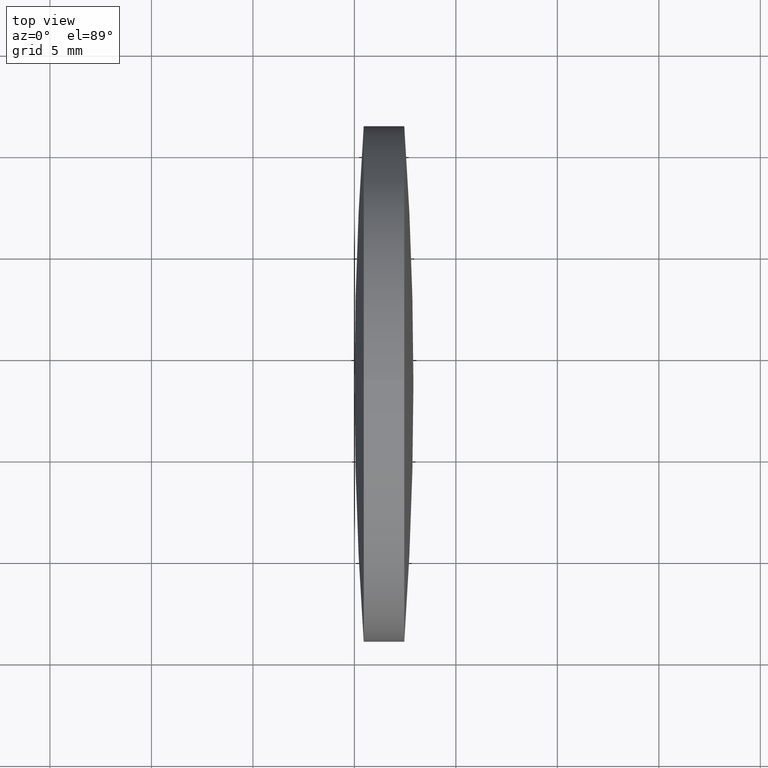
[diagram: clean part render]
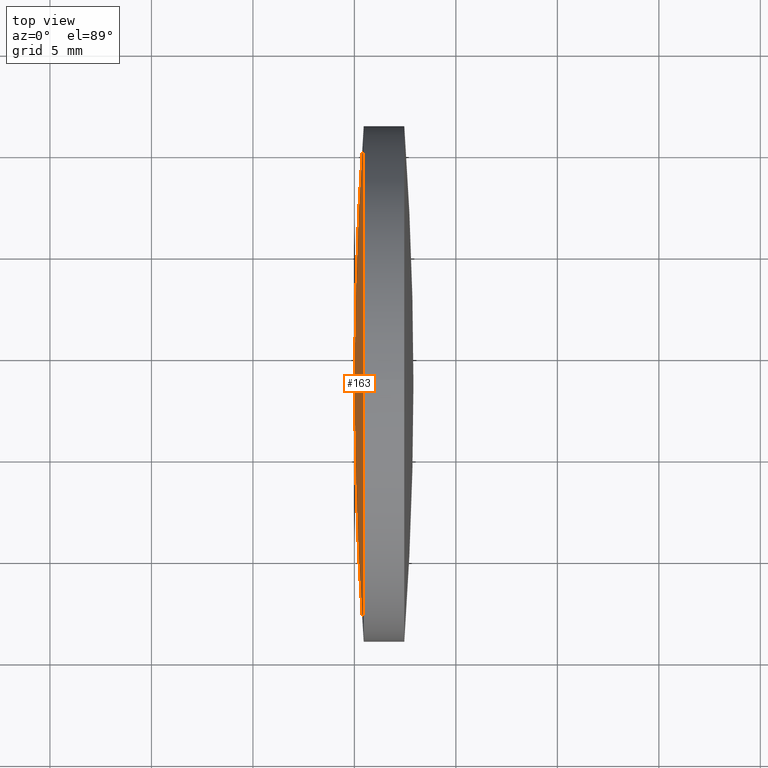
[diagram: same view with one face highlighted and labeled with its STEP entity id]
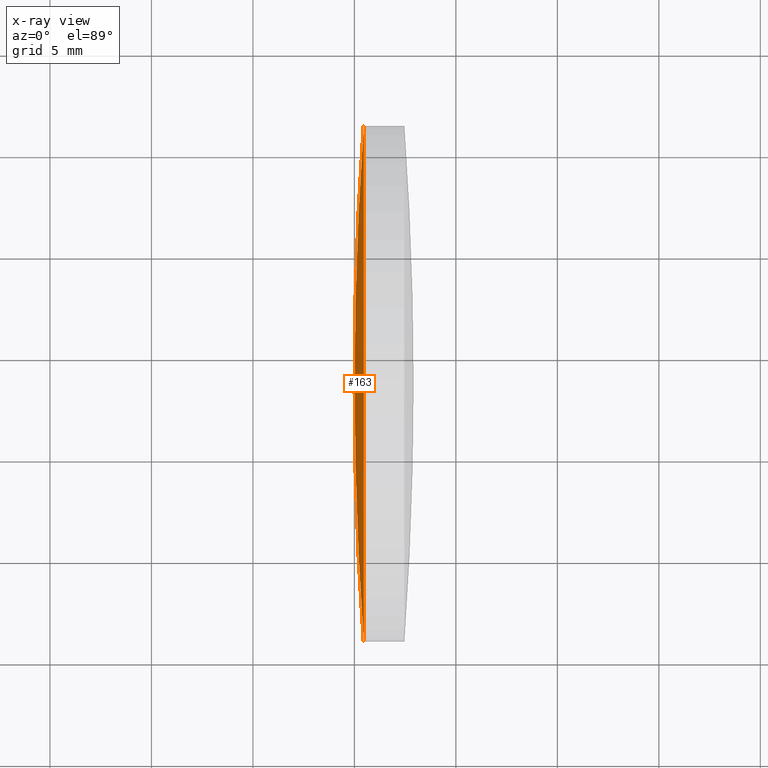
[diagram: x-ray of the same camera — body ghosted, the highlighted face saturated]
A machine part, top view. The second image highlights one B-rep face of the part: STEP entity #163.
The next image is the same camera in x-ray: the body ghosted, the highlighted face saturated — about 0% of this face is hidden behind the body in this view.
In plain terms, the highlighted spherical surface has radius 179.315 mm.
Its self-contained STEP definition (entity closure, byte-faithful):
#2 = FACE_OUTER_BOUND ( 'NONE', #178, .T. ) ;
#3 = ORIENTED_EDGE ( 'NONE', *, *, #337, .T. ) ;
#11 = DIRECTION ( 'NONE',  ( -1.000000000000000000, -0.0000000000000000000, -0.0000000000000000000 ) ) ;
#18 = VERTEX_POINT ( 'NONE', #232 ) ;
#24 = CARTESIAN_POINT ( 'NONE',  ( 264.3228134857245100, 48.61611302318468800, 0.0000000000000000000 ) ) ;
#27 = EDGE_CURVE ( 'NONE', #310, #57, #243, .T. ) ;
#31 = CARTESIAN_POINT ( 'NONE',  ( 264.3228134857245100, 48.61611302318468800, 0.0000000000000000000 ) ) ;
#32 = CARTESIAN_POINT ( 'NONE',  ( 85.45852234609110100, 35.91611302318484200, -1.555301434917118900E-015 ) ) ;
#54 = CIRCLE ( 'NONE', #175, 179.3145968539190800 ) ;
#57 = VERTEX_POINT ( 'NONE', #277 ) ;
#59 = VERTEX_POINT ( 'NONE', #63 ) ;
#63 = CARTESIAN_POINT ( 'NONE',  ( 85.00821663180541100, 48.61611302318470300, 0.0000000000000000000 ) ) ;
#73 = DIRECTION ( 'NONE',  ( -0.0000000000000000000, 0.0000000000000000000, -1.000000000000000000 ) ) ;
#91 = DIRECTION ( 'NONE',  ( 0.0000000000000000000, 0.0000000000000000000, 1.000000000000000000 ) ) ;
#92 = CARTESIAN_POINT ( 'NONE',  ( 264.3228134857245100, 48.61611302318468800, 0.0000000000000000000 ) ) ;
#106 = DIRECTION ( 'NONE',  ( 0.0000000000000000000, 1.224646799147353200E-016, -1.000000000000000000 ) ) ;
#121 = ORIENTED_EDGE ( 'NONE', *, *, #302, .T. ) ;
#133 = DIRECTION ( 'NONE',  ( 0.0000000000000000000, 1.000000000000000000, 1.224646799147353200E-016 ) ) ;
#141 = AXIS2_PLACEMENT_3D ( 'NONE', #92, #272, #312 ) ;
#163 = ADVANCED_FACE ( 'NONE', ( #2 ), #170, .T. ) ;
#167 = CARTESIAN_POINT ( 'NONE',  ( 85.45852234609111500, 48.61611302318478100, 0.0000000000000000000 ) ) ;
#170 = SPHERICAL_SURFACE ( 'NONE', #314, 179.3145968539190800 ) ;
#171 = AXIS2_PLACEMENT_3D ( 'NONE', #299, #185, #215 ) ;
#175 = AXIS2_PLACEMENT_3D ( 'NONE', #31, #106, #133 ) ;
#178 = EDGE_LOOP ( 'NONE', ( #317, #246, #121, #3 ) ) ;
#185 = DIRECTION ( 'NONE',  ( -1.000000000000000000, -0.0000000000000000000, -0.0000000000000000000 ) ) ;
#212 = AXIS2_PLACEMENT_3D ( 'NONE', #167, #11, #91 ) ;
#215 = DIRECTION ( 'NONE',  ( 0.0000000000000000000, 0.0000000000000000000, 1.000000000000000000 ) ) ;
#232 = CARTESIAN_POINT ( 'NONE',  ( 85.45852234609110100, 61.31611302318462700, 0.0000000000000000000 ) ) ;
#243 = CIRCLE ( 'NONE', #171, 12.69999999999999600 ) ;
#246 = ORIENTED_EDGE ( 'NONE', *, *, #27, .T. ) ;
#248 = EDGE_CURVE ( 'NONE', #310, #59, #54, .T. ) ;
#254 = CIRCLE ( 'NONE', #212, 12.69999999999999600 ) ;
#272 = DIRECTION ( 'NONE',  ( -0.0000000000000000000, 0.0000000000000000000, 1.000000000000000000 ) ) ;
#277 = CARTESIAN_POINT ( 'NONE',  ( 85.45852234609111500, 48.61611302318478100, 12.69999999999999600 ) ) ;
#299 = CARTESIAN_POINT ( 'NONE',  ( 85.45852234609111500, 48.61611302318478100, 0.0000000000000000000 ) ) ;
#302 = EDGE_CURVE ( 'NONE', #57, #18, #254, .T. ) ;
#310 = VERTEX_POINT ( 'NONE', #32 ) ;
#312 = DIRECTION ( 'NONE',  ( 1.000000000000000000, 0.0000000000000000000, 0.0000000000000000000 ) ) ;
#314 = AXIS2_PLACEMENT_3D ( 'NONE', #24, #73, #345 ) ;
#317 = ORIENTED_EDGE ( 'NONE', *, *, #248, .F. ) ;
#337 = EDGE_CURVE ( 'NONE', #18, #59, #338, .T. ) ;
#338 = CIRCLE ( 'NONE', #141, 179.3145968539190800 ) ;
#345 = DIRECTION ( 'NONE',  ( 0.0000000000000000000, 1.000000000000000000, 0.0000000000000000000 ) ) ;